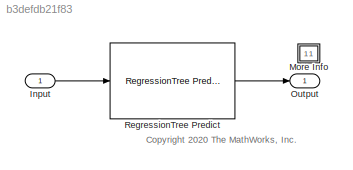
MODEL slx_b3defdb21f83
KIND model
CONFIG AbsTol = auto
CONFIG EnableMultiTasking = off
CONFIG FixedStep = auto
CONFIG MaxStep = auto
CONFIG MinStep = auto
CONFIG PreLoadFcn = if ~exist("treeMdl","var")\n\nload carbig\nX = [Acceleration,Cylinders,Displacement,Horsepower,Model_Year,Weight];\nY = MPG;\n\ntreeMdl = fitrtree(X,Y);\n\nload carsmall\ntestX = [Acceleration,Cylinders,Displacement,Horsepower,Model_Year,Weight];\ntestX = rmmissing(testX);\ncarsmallInput.time = (0:size(testX,1)-1)';\ncarsmallInput.signals(1).values = testX;\ncarsmallInput.signals(1).dimensions = size(testX,2);...<+5ch>
CONFIG RelTol = 1e-3
CONFIG SampleTimeConstraint = Unconstrained
CONFIG SolverName = FixedStepDiscrete
CONFIG StartTime = 0.0
CONFIG StopTime = carsmallInput.time(end)
BLOCK [Inport] Input
  PortDimensions = 6
BLOCK [SubSystem] More Info
  OpenFcn = showExample('stats/PredictResponsesUsingRegressionTreePredictBlockExample')
BLOCK [Outport] Output
BLOCK [Reference] RegressionTree Predict  REF=statsLibrary/Regression/RegressionTree Predict
  SourceBlock = statsLibrary/Regression/RegressionTree Predict
  SourceType = RegressionTree Predict
ANNOTATION (root): <copyright redacted>
LINE Input:1 -> RegressionTree Predict:1
LINE RegressionTree Predict:1 -> Output:1
